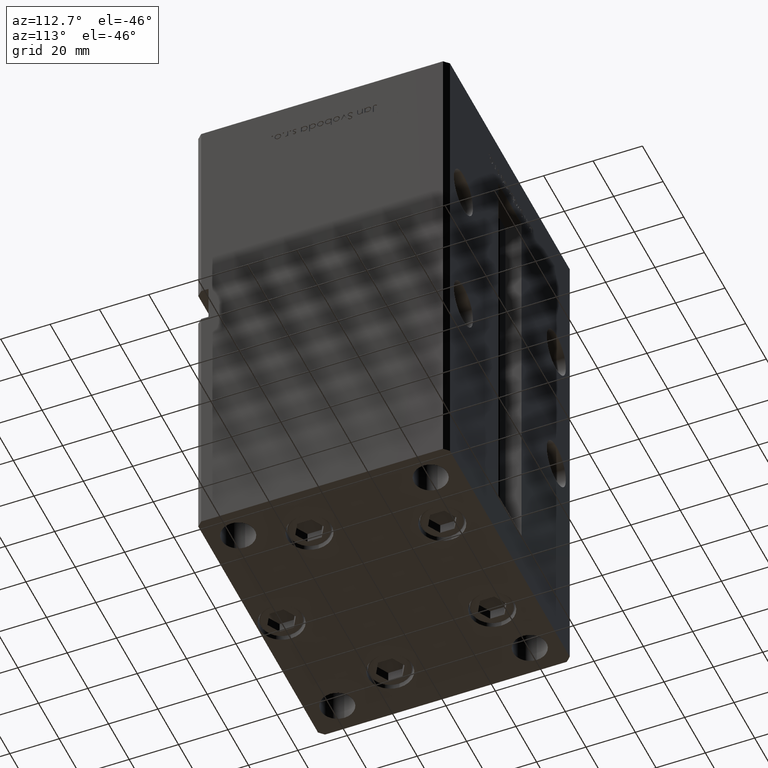
[diagram: clean part render]
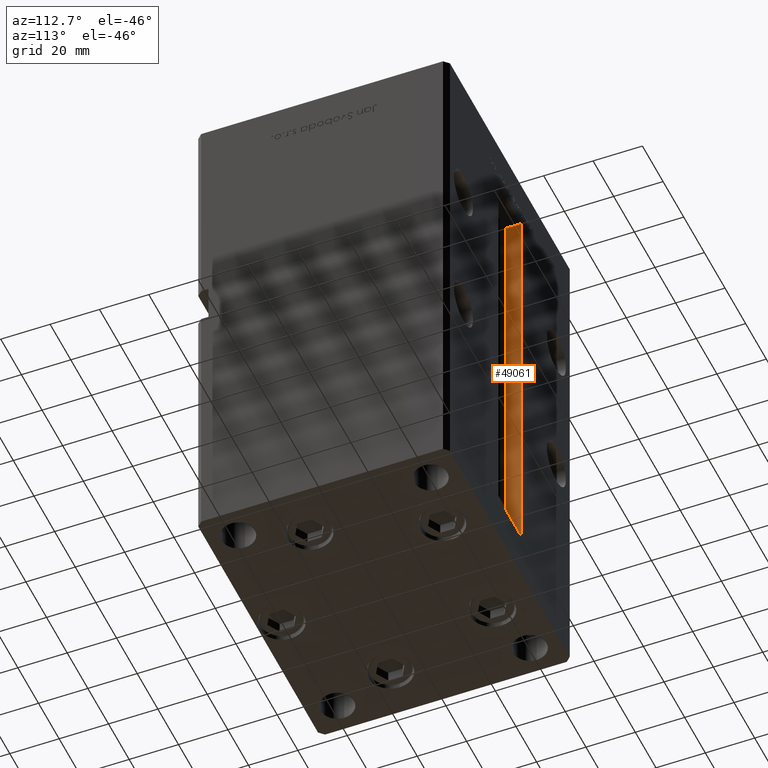
[diagram: same view with one face highlighted and labeled with its STEP entity id]
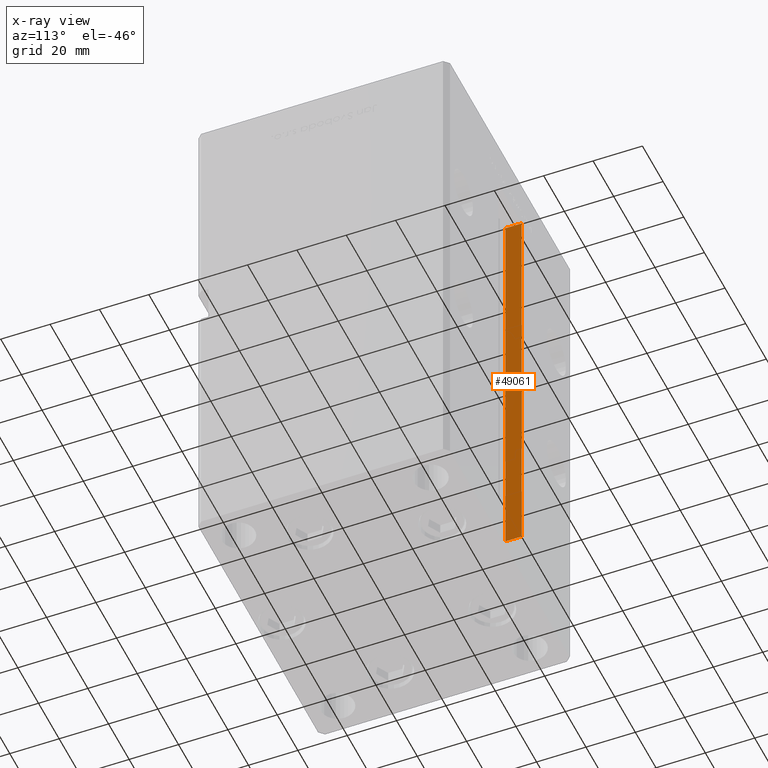
[diagram: x-ray of the same camera — body ghosted, the highlighted face saturated]
A machine part, auxiliary view. The second image highlights one B-rep face of the part: STEP entity #49061.
The next image is the same camera in x-ray: the body ghosted, the highlighted face saturated — about 0% of this face is hidden behind the body in this view.
In plain terms, the highlighted planar face has unit normal (-1, 0, 0).
Its self-contained STEP definition (entity closure, byte-faithful):
#2100 = CARTESIAN_POINT ( 'NONE',  ( -11.24999999999999822, 44.50000000000000711, 0.000000000000000000 ) ) ;
#3353 = CARTESIAN_POINT ( 'NONE',  ( -11.24999999999999822, 51.00000000000000711, 0.000000000000000000 ) ) ;
#3836 = VERTEX_POINT ( 'NONE', #4011 ) ;
#4011 = CARTESIAN_POINT ( 'NONE',  ( -11.24999999999999822, 44.50000000000000711, 168.5000000000000000 ) ) ;
#4117 = CARTESIAN_POINT ( 'NONE',  ( -11.24999999999999822, 51.00000000000000711, 168.5000000000000000 ) ) ;
#4331 = AXIS2_PLACEMENT_3D ( 'NONE', #26105, #38684, #37165 ) ;
#7878 = EDGE_CURVE ( 'NONE', #3836, #43561, #42425, .T. ) ;
#9624 = DIRECTION ( 'NONE',  ( -0.000000000000000000, -0.000000000000000000, 1.000000000000000000 ) ) ;
#15913 = CARTESIAN_POINT ( 'NONE',  ( -11.24999999999999822, 44.50000000000000711, 0.000000000000000000 ) ) ;
#16572 = VECTOR ( 'NONE', #26596, 1000.000000000000000 ) ;
#17062 = ORIENTED_EDGE ( 'NONE', *, *, #22678, .F. ) ;
#17937 = CARTESIAN_POINT ( 'NONE',  ( -11.24999999999999822, 51.00000000000000711, 0.000000000000000000 ) ) ;
#20673 = VERTEX_POINT ( 'NONE', #37585 ) ;
#20811 = FACE_OUTER_BOUND ( 'NONE', #22258, .T. ) ;
#22258 = EDGE_LOOP ( 'NONE', ( #46280, #17062, #31496, #31241 ) ) ;
#22678 = EDGE_CURVE ( 'NONE', #47778, #20673, #32537, .T. ) ;
#25483 = DIRECTION ( 'NONE',  ( -0.000000000000000000, -0.000000000000000000, 1.000000000000000000 ) ) ;
#26083 = CARTESIAN_POINT ( 'NONE',  ( -11.24999999999999822, 0.000000000000000000, 168.5000000000000000 ) ) ;
#26105 = CARTESIAN_POINT ( 'NONE',  ( -11.24999999999999822, 44.50000000000000711, 0.000000000000000000 ) ) ;
#26520 = VECTOR ( 'NONE', #25483, 1000.000000000000000 ) ;
#26596 = DIRECTION ( 'NONE',  ( 0.000000000000000000, 1.000000000000000000, 0.000000000000000000 ) ) ;
#30284 = EDGE_CURVE ( 'NONE', #47778, #43561, #39092, .T. ) ;
#31241 = ORIENTED_EDGE ( 'NONE', *, *, #7878, .F. ) ;
#31496 = ORIENTED_EDGE ( 'NONE', *, *, #30284, .T. ) ;
#32537 = LINE ( 'NONE', #15913, #32804 ) ;
#32617 = PLANE ( 'NONE',  #4331 ) ;
#32804 = VECTOR ( 'NONE', #48894, 1000.000000000000000 ) ;
#37165 = DIRECTION ( 'NONE',  ( 0.000000000000000000, 0.000000000000000000, 1.000000000000000000 ) ) ;
#37585 = CARTESIAN_POINT ( 'NONE',  ( -11.24999999999999822, 44.50000000000000711, 0.000000000000000000 ) ) ;
#38684 = DIRECTION ( 'NONE',  ( -1.000000000000000000, 0.000000000000000000, 0.000000000000000000 ) ) ;
#39092 = LINE ( 'NONE', #17937, #39864 ) ;
#39864 = VECTOR ( 'NONE', #9624, 1000.000000000000000 ) ;
#42425 = LINE ( 'NONE', #26083, #16572 ) ;
#43561 = VERTEX_POINT ( 'NONE', #4117 ) ;
#45345 = EDGE_CURVE ( 'NONE', #20673, #3836, #50954, .T. ) ;
#46280 = ORIENTED_EDGE ( 'NONE', *, *, #45345, .F. ) ;
#47778 = VERTEX_POINT ( 'NONE', #3353 ) ;
#48894 = DIRECTION ( 'NONE',  ( -0.000000000000000000, -1.000000000000000000, -0.000000000000000000 ) ) ;
#49061 = ADVANCED_FACE ( 'NONE', ( #20811 ), #32617, .F. ) ;
#50954 = LINE ( 'NONE', #2100, #26520 ) ;